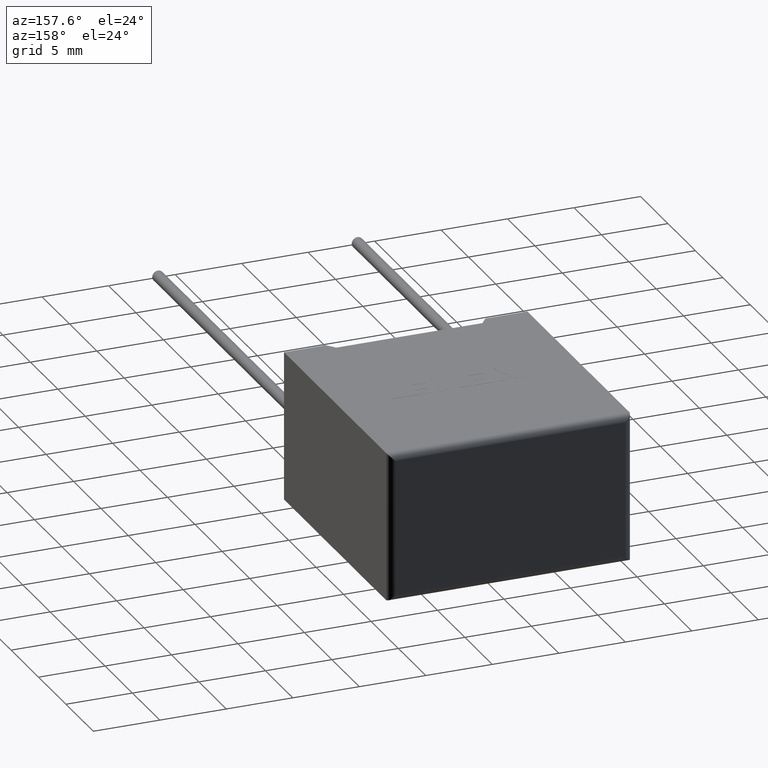
[diagram: clean part render]
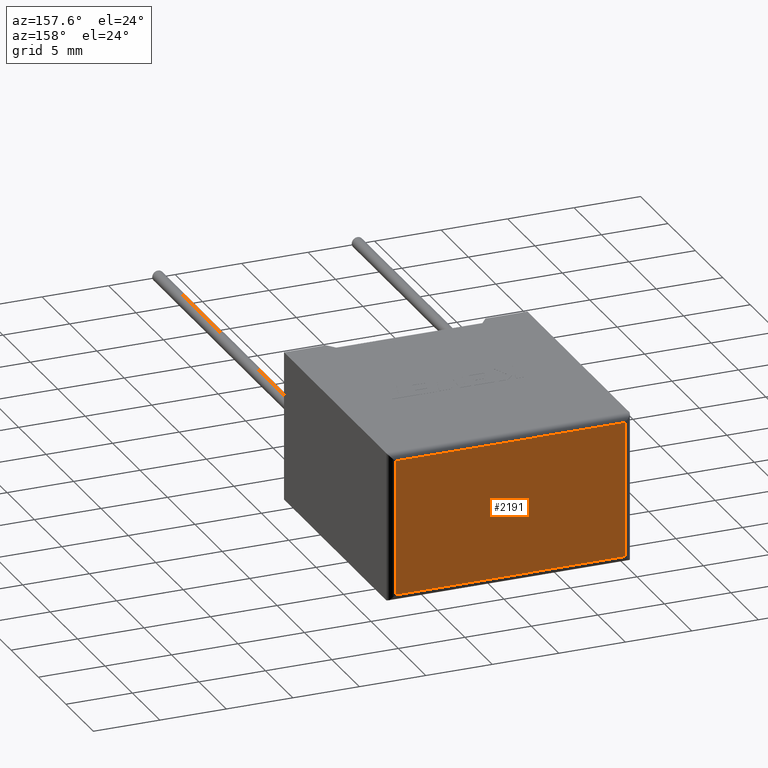
[diagram: same view with one face highlighted and labeled with its STEP entity id]
A machine part, auxiliary view. The second image highlights one B-rep face of the part: STEP entity #2191.
In plain terms, the highlighted planar face has unit normal (0, -1, 0).
Its self-contained STEP definition (entity closure, byte-faithful):
#103 = VECTOR ( 'NONE', #1134, 1000.000000000000000 ) ;
#295 = CARTESIAN_POINT ( 'NONE',  ( 17.80000000000000071, 19.10000000000000142, 11.19999999999999929 ) ) ;
#327 = CARTESIAN_POINT ( 'NONE',  ( 0.5000000000000000000, 19.10000000000000142, 10.69999999999999929 ) ) ;
#353 = VECTOR ( 'NONE', #1716, 1000.000000000000000 ) ;
#373 = ORIENTED_EDGE ( 'NONE', *, *, #1693, .T. ) ;
#519 = EDGE_CURVE ( 'NONE', #2908, #950, #2898, .T. ) ;
#788 = DIRECTION ( 'NONE',  ( 1.000000000000000000, -0.000000000000000000, -0.000000000000000000 ) ) ;
#943 = EDGE_LOOP ( 'NONE', ( #373, #1572, #2385, #1864 ) ) ;
#950 = VERTEX_POINT ( 'NONE', #2840 ) ;
#1105 = CARTESIAN_POINT ( 'NONE',  ( 17.80000000000000071, 19.10000000000000142, 0.5000000000000004441 ) ) ;
#1134 = DIRECTION ( 'NONE',  ( -0.000000000000000000, -0.000000000000000000, 1.000000000000000000 ) ) ;
#1304 = AXIS2_PLACEMENT_3D ( 'NONE', #2994, #1365, #3009 ) ;
#1365 = DIRECTION ( 'NONE',  ( 0.000000000000000000, -1.000000000000000000, 0.000000000000000000 ) ) ;
#1572 = ORIENTED_EDGE ( 'NONE', *, *, #1863, .T. ) ;
#1606 = VECTOR ( 'NONE', #2605, 1000.000000000000000 ) ;
#1630 = CARTESIAN_POINT ( 'NONE',  ( 0.5000000000000000000, 19.10000000000000142, 11.19999999999999929 ) ) ;
#1693 = EDGE_CURVE ( 'NONE', #2433, #1725, #1880, .T. ) ;
#1716 = DIRECTION ( 'NONE',  ( -1.000000000000000000, 0.000000000000000000, 0.000000000000000000 ) ) ;
#1719 = VECTOR ( 'NONE', #788, 1000.000000000000000 ) ;
#1725 = VERTEX_POINT ( 'NONE', #2416 ) ;
#1863 = EDGE_CURVE ( 'NONE', #1725, #2908, #2760, .T. ) ;
#1864 = ORIENTED_EDGE ( 'NONE', *, *, #2825, .T. ) ;
#1880 = LINE ( 'NONE', #2155, #353 ) ;
#2058 = PLANE ( 'NONE',  #1304 ) ;
#2155 = CARTESIAN_POINT ( 'NONE',  ( 0.000000000000000000, 19.10000000000000142, 0.5000000000000004441 ) ) ;
#2191 = ADVANCED_FACE ( 'NONE', ( #2337 ), #2058, .F. ) ;
#2240 = CARTESIAN_POINT ( 'NONE',  ( 0.000000000000000000, 19.10000000000000142, 10.69999999999999929 ) ) ;
#2337 = FACE_OUTER_BOUND ( 'NONE', #943, .T. ) ;
#2385 = ORIENTED_EDGE ( 'NONE', *, *, #519, .T. ) ;
#2416 = CARTESIAN_POINT ( 'NONE',  ( 0.5000000000000000000, 19.10000000000000142, 0.5000000000000004441 ) ) ;
#2433 = VERTEX_POINT ( 'NONE', #1105 ) ;
#2605 = DIRECTION ( 'NONE',  ( 0.000000000000000000, 0.000000000000000000, -1.000000000000000000 ) ) ;
#2617 = LINE ( 'NONE', #295, #1606 ) ;
#2760 = LINE ( 'NONE', #1630, #103 ) ;
#2825 = EDGE_CURVE ( 'NONE', #950, #2433, #2617, .T. ) ;
#2840 = CARTESIAN_POINT ( 'NONE',  ( 17.80000000000000071, 19.10000000000000142, 10.69999999999999929 ) ) ;
#2898 = LINE ( 'NONE', #2240, #1719 ) ;
#2908 = VERTEX_POINT ( 'NONE', #327 ) ;
#2994 = CARTESIAN_POINT ( 'NONE',  ( 0.000000000000000000, 19.10000000000000142, 11.19999999999999929 ) ) ;
#3009 = DIRECTION ( 'NONE',  ( 0.000000000000000000, -0.000000000000000000, -1.000000000000000000 ) ) ;